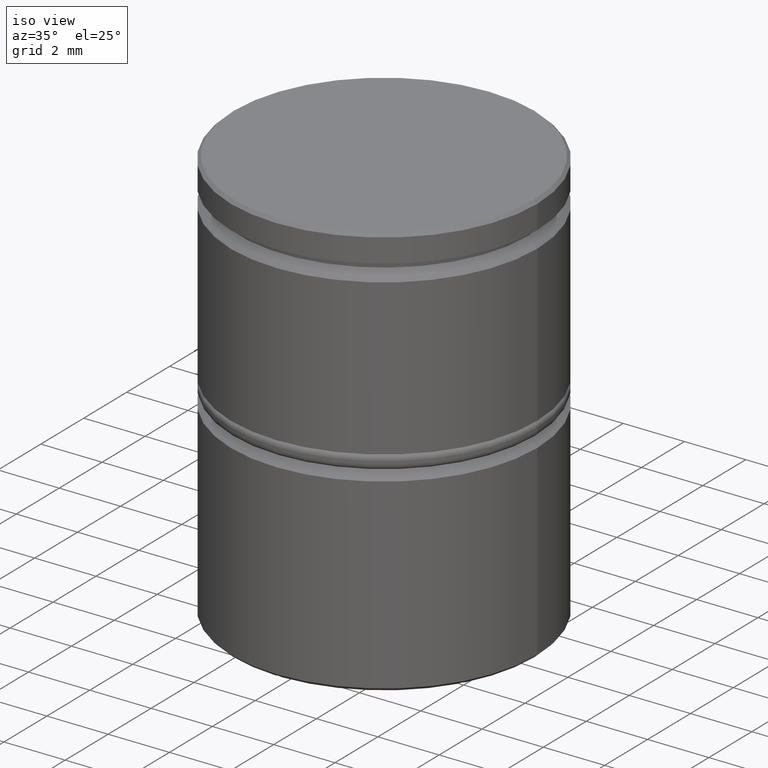
[diagram: clean part render]
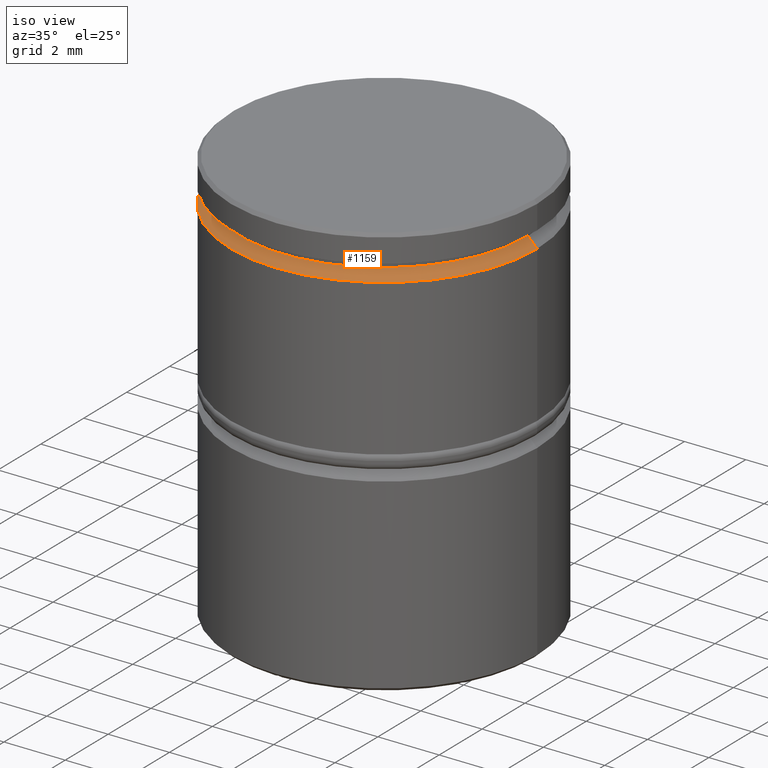
[diagram: same view with one face highlighted and labeled with its STEP entity id]
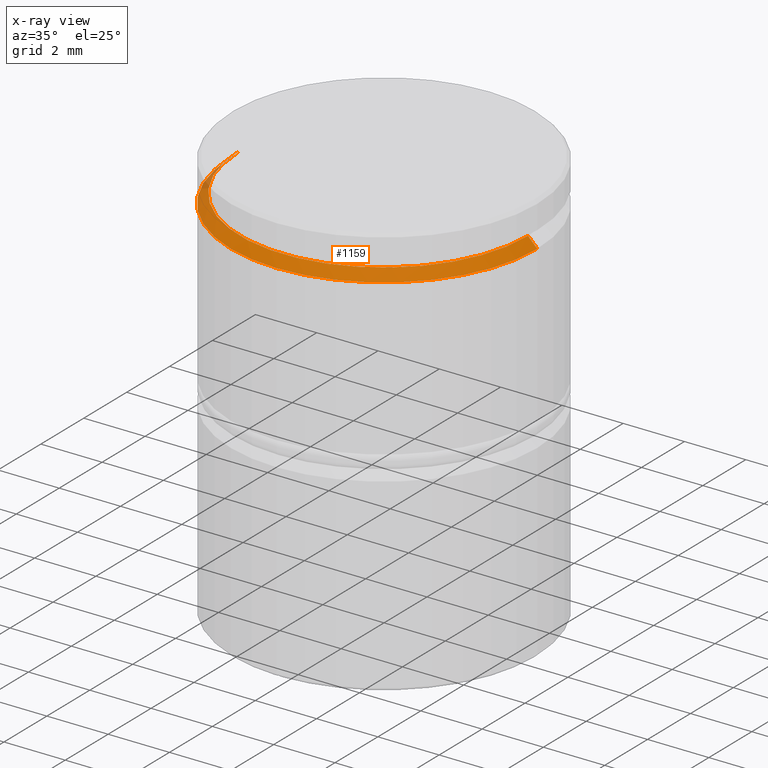
[diagram: x-ray of the same camera — body ghosted, the highlighted face saturated]
A machine part, iso view. The second image highlights one B-rep face of the part: STEP entity #1159.
The next image is the same camera in x-ray: the body ghosted, the highlighted face saturated — about 2% of this face is hidden behind the body in this view.
In plain terms, the highlighted conical surface has half-angle 45 deg.
Its self-contained STEP definition (entity closure, byte-faithful):
#49 = ORIENTED_EDGE ( 'NONE', *, *, #301, .F. ) ;
#62 = DIRECTION ( 'NONE',  ( 1.000000000000000000, 0.000000000000000000, 0.000000000000000000 ) ) ;
#72 = EDGE_CURVE ( 'NONE', #1158, #812, #756, .T. ) ;
#90 = LINE ( 'NONE', #1259, #864 ) ;
#103 = DIRECTION ( 'NONE',  ( -0.000000000000000000, -0.000000000000000000, 1.000000000000000000 ) ) ;
#301 = EDGE_CURVE ( 'NONE', #402, #1326, #707, .T. ) ;
#305 = DIRECTION ( 'NONE',  ( 0.000000000000000000, 0.000000000000000000, -1.000000000000000000 ) ) ;
#322 = EDGE_CURVE ( 'NONE', #812, #402, #700, .T. ) ;
#374 = DIRECTION ( 'NONE',  ( -1.000000000000000000, 0.000000000000000000, 0.000000000000000000 ) ) ;
#382 = DIRECTION ( 'NONE',  ( 0.000000000000000000, 0.000000000000000000, -1.000000000000000000 ) ) ;
#389 = AXIS2_PLACEMENT_3D ( 'NONE', #842, #103, #1261 ) ;
#402 = VERTEX_POINT ( 'NONE', #1348 ) ;
#443 = EDGE_LOOP ( 'NONE', ( #862, #464, #955, #49 ) ) ;
#464 = ORIENTED_EDGE ( 'NONE', *, *, #72, .F. ) ;
#471 = EDGE_CURVE ( 'NONE', #1158, #1326, #90, .T. ) ;
#507 = CARTESIAN_POINT ( 'NONE',  ( 0.000000000000000000, 0.000000000000000000, -1.425000000000000933 ) ) ;
#519 = CARTESIAN_POINT ( 'NONE',  ( 4.700000000000000178, 0.000000000000000000, -1.125000000000000222 ) ) ;
#556 = AXIS2_PLACEMENT_3D ( 'NONE', #507, #305, #62 ) ;
#687 = AXIS2_PLACEMENT_3D ( 'NONE', #1014, #382, #374 ) ;
#700 = LINE ( 'NONE', #1356, #1017 ) ;
#707 = CIRCLE ( 'NONE', #556, 5.000000000000000000 ) ;
#756 = CIRCLE ( 'NONE', #389, 4.700000000000000178 ) ;
#812 = VERTEX_POINT ( 'NONE', #519 ) ;
#842 = CARTESIAN_POINT ( 'NONE',  ( 0.000000000000000000, 0.000000000000000000, -1.125000000000000222 ) ) ;
#862 = ORIENTED_EDGE ( 'NONE', *, *, #322, .F. ) ;
#864 = VECTOR ( 'NONE', #1154, 1000.000000000000000 ) ;
#955 = ORIENTED_EDGE ( 'NONE', *, *, #471, .T. ) ;
#978 = CONICAL_SURFACE ( 'NONE', #687, 4.699999999999999289, 0.7853981633974482790 ) ;
#1011 = DIRECTION ( 'NONE',  ( 0.7071067811865475727, 8.659560562354932858E-17, -0.7071067811865474617 ) ) ;
#1014 = CARTESIAN_POINT ( 'NONE',  ( 0.000000000000000000, 0.000000000000000000, -1.125000000000000222 ) ) ;
#1017 = VECTOR ( 'NONE', #1011, 1000.000000000000000 ) ;
#1074 = CARTESIAN_POINT ( 'NONE',  ( -5.000000000000000000, 6.123233995736766282E-16, -1.425000000000000933 ) ) ;
#1109 = FACE_OUTER_BOUND ( 'NONE', #443, .T. ) ;
#1154 = DIRECTION ( 'NONE',  ( -0.7071067811865475727, 0.000000000000000000, -0.7071067811865474617 ) ) ;
#1158 = VERTEX_POINT ( 'NONE', #1315 ) ;
#1159 = ADVANCED_FACE ( 'NONE', ( #1109 ), #978, .T. ) ;
#1259 = CARTESIAN_POINT ( 'NONE',  ( -4.699999999999999289, 0.000000000000000000, -1.125000000000000222 ) ) ;
#1261 = DIRECTION ( 'NONE',  ( 1.000000000000000000, 0.000000000000000000, 0.000000000000000000 ) ) ;
#1315 = CARTESIAN_POINT ( 'NONE',  ( -4.700000000000000178, 5.755839955992559655E-16, -1.125000000000000222 ) ) ;
#1326 = VERTEX_POINT ( 'NONE', #1074 ) ;
#1348 = CARTESIAN_POINT ( 'NONE',  ( 5.000000000000000000, 0.000000000000000000, -1.425000000000000933 ) ) ;
#1356 = CARTESIAN_POINT ( 'NONE',  ( 4.699999999999999289, 5.755839955992557682E-16, -1.125000000000000222 ) ) ;